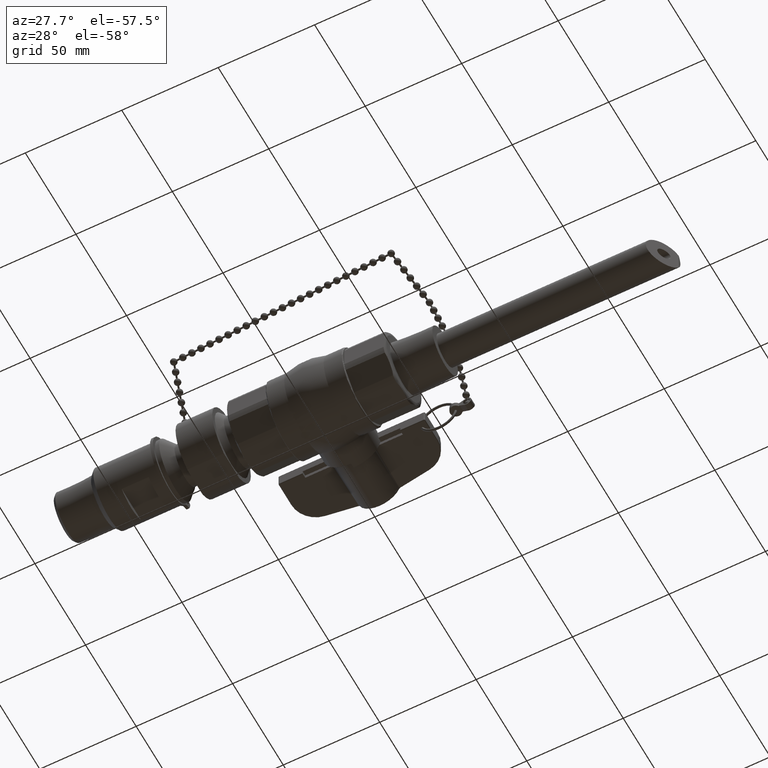
[diagram: clean part render]
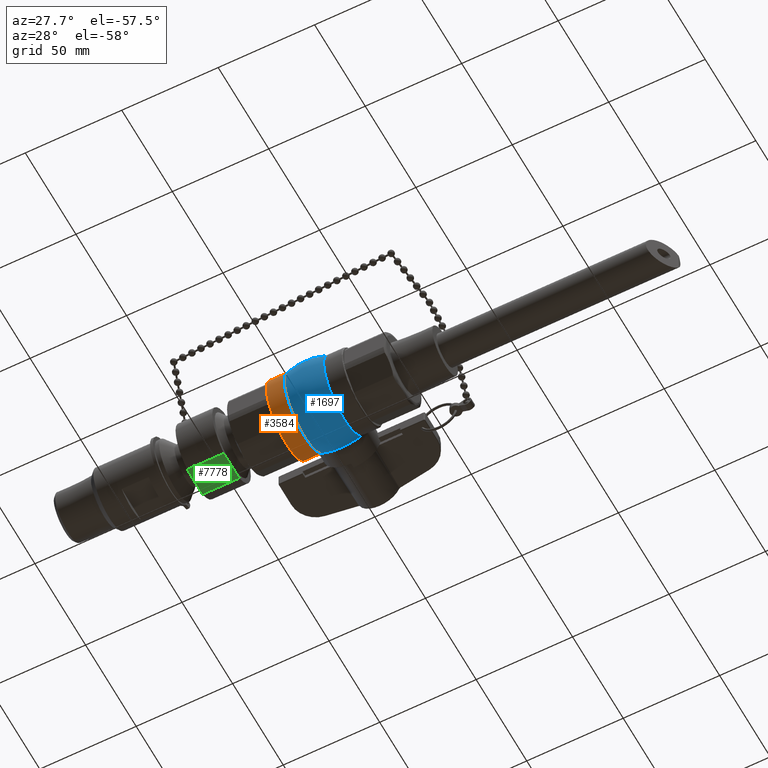
[diagram: same view with three faces highlighted in distinct colors, each labeled with its STEP entity id]
A machine part, auxiliary view with three faces highlighted in distinct colors.
Their STEP definitions:

[orange] entity #3584 — the highlighted cylindrical surface (bore or boss wall) has radius 20.1295 mm, axis along (-1, 0, -0).
#1654=CARTESIAN_POINT('',(-0.402500000000000,0.694289204870708,0.382123998199537));
#1655=VERTEX_POINT('',#1654);
#1671=CARTESIAN_POINT('',(-0.402500000000000,0.694289204870708,-0.382123998199537));
#1672=VERTEX_POINT('',#1671);
#1673=CARTESIAN_POINT('',(-0.402500000000000,0.0,-4.929203E-017));
#1674=DIRECTION('',(-1.0,0.0,0.0));
#1675=DIRECTION('',(0.0,1.0,0.0));
#1676=AXIS2_PLACEMENT_3D('',#1673,#1674,#1675);
#1677=CIRCLE('',#1676,0.792500000000000);
#1678=EDGE_CURVE('',#1672,#1655,#1677,.T.);
#3548=CARTESIAN_POINT('',(-1.010250000000000,0.0,-1.237199E-016));
#3549=DIRECTION('',(-1.0,0.0,-1.224647E-016));
#3550=DIRECTION('',(0.0,1.0,0.0));
#3551=AXIS2_PLACEMENT_3D('',#3548,#3549,#3550);
#3552=CYLINDRICAL_SURFACE('',#3551,0.792500000000000);
#3553=ORIENTED_EDGE('',*,*,#1678,.T.);
#3554=CARTESIAN_POINT('',(-0.402500000000000,0.694289204870708,0.382123998199537));
#3555=CARTESIAN_POINT('',(-0.445991388115991,0.719502449717207,0.336313518357479));
#3556=CARTESIAN_POINT('',(-0.484438606626481,0.744525616476509,0.279388910762243));
#3557=CARTESIAN_POINT('',(-0.525570669144028,0.772102159161733,0.182115581408095));
#3558=CARTESIAN_POINT('',(-0.536675348497231,0.779758645760761,0.146248570559199));
#3559=CARTESIAN_POINT('',(-0.551393112804413,0.789960429895558,0.073312408489155));
#3560=CARTESIAN_POINT('',(-0.555000000000000,0.792500000000000,0.036241205771124));
#3561=CARTESIAN_POINT('',(-0.555000000000000,0.792500000000000,-0.036241205771124));
#3562=CARTESIAN_POINT('',(-0.551393112804413,0.789960429895558,-0.073312408489155));
#3563=CARTESIAN_POINT('',(-0.536675348497231,0.779758645760761,-0.146248570559199));
#3564=CARTESIAN_POINT('',(-0.525570669144028,0.772102159161734,-0.182115581408095));
#3565=CARTESIAN_POINT('',(-0.484438606626481,0.744525616476509,-0.279388910762243));
#3566=CARTESIAN_POINT('',(-0.445991388115991,0.719502449717207,-0.336313518357479));
#3567=CARTESIAN_POINT('',(-0.402500000000000,0.694289204870708,-0.382123998199537));
#3568=B_SPLINE_CURVE_WITH_KNOTS('',3,(#3554,#3555,#3556,#3557,#3558,#3559,#3560,#3561,#3562,#3563,#3564,#3565,#3566,#3567),.UNSPECIFIED.,.F.,.U.,(4,2,2,2,2,2,4),(1.159900147248421,1.672981997358711,1.949139985334678,2.225297973310644,2.501455961286610,2.777613949262577,3.290695799372867),.UNSPECIFIED.);
#3569=EDGE_CURVE('',#1655,#1672,#3568,.T.);
#3570=ORIENTED_EDGE('',*,*,#3569,.T.);
#3571=EDGE_LOOP('',(#3553,#3570));
#3572=FACE_OUTER_BOUND('',#3571,.T.);
#3573=CARTESIAN_POINT('',(-0.768000000000000,2.426331E-016,0.792500000000000));
#3574=VERTEX_POINT('',#3573);
#3575=CARTESIAN_POINT('',(-0.768000000000000,0.0,-9.405287E-017));
#3576=DIRECTION('',(-1.0,0.0,0.0));
#3577=DIRECTION('',(0.0,0.0,-1.0));
#3578=AXIS2_PLACEMENT_3D('',#3575,#3576,#3577);
#3579=CIRCLE('',#3578,0.792500000000000);
#3580=EDGE_CURVE('',#3574,#3574,#3579,.T.);
#3581=ORIENTED_EDGE('',*,*,#3580,.F.);
#3582=EDGE_LOOP('',(#3581));
#3583=FACE_BOUND('',#3582,.T.);
#3584=ADVANCED_FACE('',(#3572,#3583),#3552,.T.);

[blue] entity #1697 — the highlighted face is a freeform B-spline surface patch.
#1608=CARTESIAN_POINT('',(0.402527454671867,9.705216E-017,-0.792491042265650));
#1609=CARTESIAN_POINT('',(2.775558E-017,1.131366E-016,-0.923830075785592));
#1610=CARTESIAN_POINT('',(-0.402527454671866,9.705216E-017,-0.792491042265650));
#1611=CARTESIAN_POINT('',(0.402527454671867,0.792491042265650,-0.792491042265650));
#1612=CARTESIAN_POINT('',(2.775558E-017,0.923830075785592,-0.923830075785591));
#1613=CARTESIAN_POINT('',(-0.402527454671866,0.792491042265650,-0.792491042265650));
#1614=CARTESIAN_POINT('',(0.402527454671867,0.792491042265650,1.463476E-016));
#1615=CARTESIAN_POINT('',(-8.538098E-017,0.923830075785592,1.131366E-016));
#1616=CARTESIAN_POINT('',(-0.402527454671866,0.792491042265650,4.775677E-017));
#1617=CARTESIAN_POINT('',(0.402527454671866,0.792491042265650,0.792491042265650));
#1618=CARTESIAN_POINT('',(-1.985175E-016,0.923830075785591,0.923830075785592));
#1619=CARTESIAN_POINT('',(-0.402527454671867,0.792491042265650,0.792491042265650));
#1620=CARTESIAN_POINT('',(0.402527454671867,-9.705216E-017,0.792491042265650));
#1621=CARTESIAN_POINT('',(-1.985175E-016,-1.131366E-016,0.923830075785592));
#1622=CARTESIAN_POINT('',(-0.402527454671867,-9.705216E-017,0.792491042265650));
#1623=CARTESIAN_POINT('',(0.402527454671866,-0.792491042265650,0.792491042265650));
#1624=CARTESIAN_POINT('',(-1.985175E-016,-0.923830075785592,0.923830075785591));
#1625=CARTESIAN_POINT('',(-0.402527454671867,-0.792491042265650,0.792491042265650));
#1626=CARTESIAN_POINT('',(0.402527454671867,-0.792491042265650,-4.775677E-017));
#1627=CARTESIAN_POINT('',(-8.538098E-017,-0.923830075785592,-1.131366E-016));
#1628=CARTESIAN_POINT('',(-0.402527454671866,-0.792491042265650,-1.463476E-016));
#1629=CARTESIAN_POINT('',(0.402527454671867,-0.792491042265650,-0.792491042265650));
#1630=CARTESIAN_POINT('',(2.775558E-017,-0.923830075785591,-0.923830075785592));
#1631=CARTESIAN_POINT('',(-0.402527454671866,-0.792491042265650,-0.792491042265650));
#1632=CARTESIAN_POINT('',(0.402527454671867,9.705216E-017,-0.792491042265650));
#1633=CARTESIAN_POINT('',(2.775558E-017,1.131366E-016,-0.923830075785592));
#1634=CARTESIAN_POINT('',(-0.402527454671866,9.705216E-017,-0.792491042265650));
#1642=(BOUNDED_SURFACE()B_SPLINE_SURFACE(2,2,((#1608,#1611,#1614,#1617,#1620,#1623,#1626,#1629,#1632),(#1609,#1612,#1615,#1618,#1621,#1624,#1627,#1630,#1633),(#1610,#1613,#1616,#1619,#1622,#1625,#1628,#1631,#1634)),.UNSPECIFIED.,.F.,.T.,.U.)B_SPLINE_SURFACE_WITH_KNOTS((3,3),(3,2,2,2,3),(-0.315394513240382,0.315394513240382),(0.0,1.570796326794897,3.141592653589793,4.712388980384690,6.283185307179586),.UNSPECIFIED.)GEOMETRIC_REPRESENTATION_ITEM()RATIONAL_B_SPLINE_SURFACE(((1.0,0.707106781186548,1.0,0.707106781186548,1.0,0.707106781186548,1.0,0.707106781186548,1.0),(0.950674078225931,0.672228087411826,0.950674078225931,0.672228087411826,0.950674078225931,0.672228087411826,0.950674078225931,0.672228087411826,0.950674078225931),(1.0,0.707106781186548,1.0,0.707106781186548,1.0,0.707106781186548,1.0,0.707106781186548,1.0)))REPRESENTATION_ITEM('')SURFACE());
#1643=CARTESIAN_POINT('',(0.402500000000000,0.694289204870708,-0.382123998199537));
#1644=VERTEX_POINT('',#1643);
#1645=CARTESIAN_POINT('',(0.402500000000000,0.694289204870708,0.382123998199537));
#1646=VERTEX_POINT('',#1645);
#1647=CARTESIAN_POINT('',(0.402500000000000,0.0,4.929203E-017));
#1648=DIRECTION('',(-1.0,0.0,0.0));
#1649=DIRECTION('',(0.0,1.0,0.0));
#1650=AXIS2_PLACEMENT_3D('',#1647,#1648,#1649);
#1651=CIRCLE('',#1650,0.792500000000000);
#1652=EDGE_CURVE('',#1644,#1646,#1651,.T.);
#1653=ORIENTED_EDGE('',*,*,#1652,.T.);
#1654=CARTESIAN_POINT('',(-0.402500000000000,0.694289204870708,0.382123998199537));
#1655=VERTEX_POINT('',#1654);
#1656=CARTESIAN_POINT('',(0.402500000000000,0.694289204870708,0.382123998199537));
#1657=CARTESIAN_POINT('',(0.366272588698172,0.686778647582645,0.420283164118689));
#1658=CARTESIAN_POINT('',(0.324757810098894,0.679177186437937,0.453143781187078));
#1659=CARTESIAN_POINT('',(0.239478826389135,0.666854707084221,0.502776451669650));
#1660=CARTESIAN_POINT('',(0.196982512229787,0.661937710556527,0.520915818224183));
#1661=CARTESIAN_POINT('',(0.085503317728400,0.653092031130762,0.552797558933748));
#1662=CARTESIAN_POINT('',(0.015411507061169,0.651153513062656,0.559182555543185));
#1663=CARTESIAN_POINT('',(-0.122132030906957,0.655040054361376,0.545676635481533));
#1664=CARTESIAN_POINT('',(-0.187918665550422,0.660597076469248,0.526596741499948));
#1665=CARTESIAN_POINT('',(-0.306177883503262,0.675827286896050,0.467374758510483));
#1666=CARTESIAN_POINT('',(-0.358259362394635,0.685117369753172,0.428723679769029));
#1667=CARTESIAN_POINT('',(-0.402500000000000,0.694289204870708,0.382123998199537));
#1668=B_SPLINE_CURVE_WITH_KNOTS('',3,(#1656,#1657,#1658,#1659,#1660,#1661,#1662,#1663,#1664,#1665,#1666,#1667),.UNSPECIFIED.,.F.,.U.,(4,2,2,2,2,4),(-2.304971812479363,-1.900047198235023,-1.547459075862200,-1.014315308233466,-0.494589476205239,0.0),.UNSPECIFIED.);
#1669=EDGE_CURVE('',#1646,#1655,#1668,.T.);
#1670=ORIENTED_EDGE('',*,*,#1669,.T.);
#1671=CARTESIAN_POINT('',(-0.402500000000000,0.694289204870708,-0.382123998199537));
#1672=VERTEX_POINT('',#1671);
#1673=CARTESIAN_POINT('',(-0.402500000000000,0.0,-4.929203E-017));
#1674=DIRECTION('',(-1.0,0.0,0.0));
#1675=DIRECTION('',(0.0,1.0,0.0));
#1676=AXIS2_PLACEMENT_3D('',#1673,#1674,#1675);
#1677=CIRCLE('',#1676,0.792500000000000);
#1678=EDGE_CURVE('',#1672,#1655,#1677,.T.);
#1679=ORIENTED_EDGE('',*,*,#1678,.F.);
#1680=CARTESIAN_POINT('',(-0.402500000000000,0.694289204870708,-0.382123998199537));
#1681=CARTESIAN_POINT('',(-0.366272588698172,0.686778647582645,-0.420283164118689));
#1682=CARTESIAN_POINT('',(-0.324757810098893,0.679177186437937,-0.453143781187078));
#1683=CARTESIAN_POINT('',(-0.239478826389136,0.666854707084221,-0.502776451669650));
#1684=CARTESIAN_POINT('',(-0.196982512229788,0.661937710556527,-0.520915818224182));
#1685=CARTESIAN_POINT('',(-0.085503317728400,0.653092031130762,-0.552797558933748));
#1686=CARTESIAN_POINT('',(-0.015411507061169,0.651153513062656,-0.559182555543185));
#1687=CARTESIAN_POINT('',(0.122132030906955,0.655040054361376,-0.545676635481533));
#1688=CARTESIAN_POINT('',(0.187918665550419,0.660597076469248,-0.526596741499950));
#1689=CARTESIAN_POINT('',(0.306177883503264,0.675827286896049,-0.467374758510483));
#1690=CARTESIAN_POINT('',(0.358259362394638,0.685117369753173,-0.428723679769026));
#1691=CARTESIAN_POINT('',(0.402500000000000,0.694289204870708,-0.382123998199537));
#1692=B_SPLINE_CURVE_WITH_KNOTS('',3,(#1680,#1681,#1682,#1683,#1684,#1685,#1686,#1687,#1688,#1689,#1690,#1691),.UNSPECIFIED.,.F.,.U.,(4,2,2,2,2,4),(-2.304971812479319,-1.900047198234974,-1.547459075862153,-1.014315308233422,-0.494589476205212,0.0),.UNSPECIFIED.);
#1693=EDGE_CURVE('',#1672,#1644,#1692,.T.);
#1694=ORIENTED_EDGE('',*,*,#1693,.T.);
#1695=EDGE_LOOP('',(#1653,#1670,#1679,#1694));
#1696=FACE_OUTER_BOUND('',#1695,.T.);
#1697=ADVANCED_FACE('',(#1696),#1642,.T.);

[green] entity #7778 — the highlighted planar face has unit normal (0, 0, 1).
#7613=CARTESIAN_POINT('',(-1.891999999999999,0.299739470207045,-0.687500000000001));
#7614=VERTEX_POINT('',#7613);
#7615=CARTESIAN_POINT('',(-2.642000000000000,0.299739470207045,-0.687500000000001));
#7616=VERTEX_POINT('',#7615);
#7617=CARTESIAN_POINT('',(-1.891999999999999,0.299739470207045,-0.687500000000001));
#7618=DIRECTION('',(-1.0,0.0,0.0));
#7619=VECTOR('',#7618,0.750000000000000);
#7620=LINE('',#7617,#7619);
#7621=EDGE_CURVE('',#7614,#7616,#7620,.T.);
#7655=CARTESIAN_POINT('',(-1.891999999999999,-0.299739470207044,-0.687500000000001));
#7656=VERTEX_POINT('',#7655);
#7657=CARTESIAN_POINT('',(-1.891999999999999,-0.299739470207044,-0.687500000000001));
#7658=DIRECTION('',(0.0,1.0,0.0));
#7659=VECTOR('',#7658,0.599478940414089);
#7660=LINE('',#7657,#7659);
#7661=EDGE_CURVE('',#7656,#7614,#7660,.T.);
#7718=CARTESIAN_POINT('',(-2.642000000000000,-0.299739470207044,-0.687500000000001));
#7719=VERTEX_POINT('',#7718);
#7720=CARTESIAN_POINT('',(-2.642000000000000,-0.299739470207044,-0.687500000000001));
#7721=DIRECTION('',(1.0,0.0,0.0));
#7722=VECTOR('',#7721,0.750000000000000);
#7723=LINE('',#7720,#7722);
#7724=EDGE_CURVE('',#7719,#7656,#7723,.T.);
#7762=CARTESIAN_POINT('',(-2.642000000000000,-0.619491177712298,-0.687500000000001));
#7763=DIRECTION('',(0.0,0.0,1.0));
#7764=DIRECTION('',(1.0,0.0,0.0));
#7765=AXIS2_PLACEMENT_3D('',#7762,#7763,#7764);
#7766=PLANE('',#7765);
#7767=ORIENTED_EDGE('',*,*,#7661,.F.);
#7768=ORIENTED_EDGE('',*,*,#7724,.F.);
#7769=CARTESIAN_POINT('',(-2.642000000000000,0.299739470207044,-0.687500000000001));
#7770=DIRECTION('',(0.0,-1.0,0.0));
#7771=VECTOR('',#7770,0.599478940414089);
#7772=LINE('',#7769,#7771);
#7773=EDGE_CURVE('',#7616,#7719,#7772,.T.);
#7774=ORIENTED_EDGE('',*,*,#7773,.F.);
#7775=ORIENTED_EDGE('',*,*,#7621,.F.);
#7776=EDGE_LOOP('',(#7767,#7768,#7774,#7775));
#7777=FACE_OUTER_BOUND('',#7776,.T.);
#7778=ADVANCED_FACE('',(#7777),#7766,.F.);